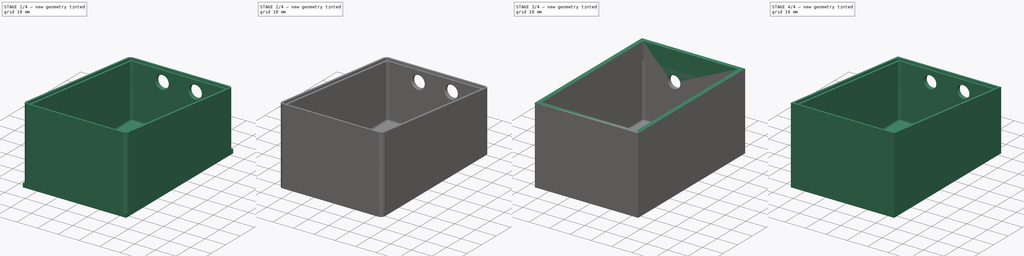
[diagram: build sequence overview — one tinted view per stage of 4, left to right]
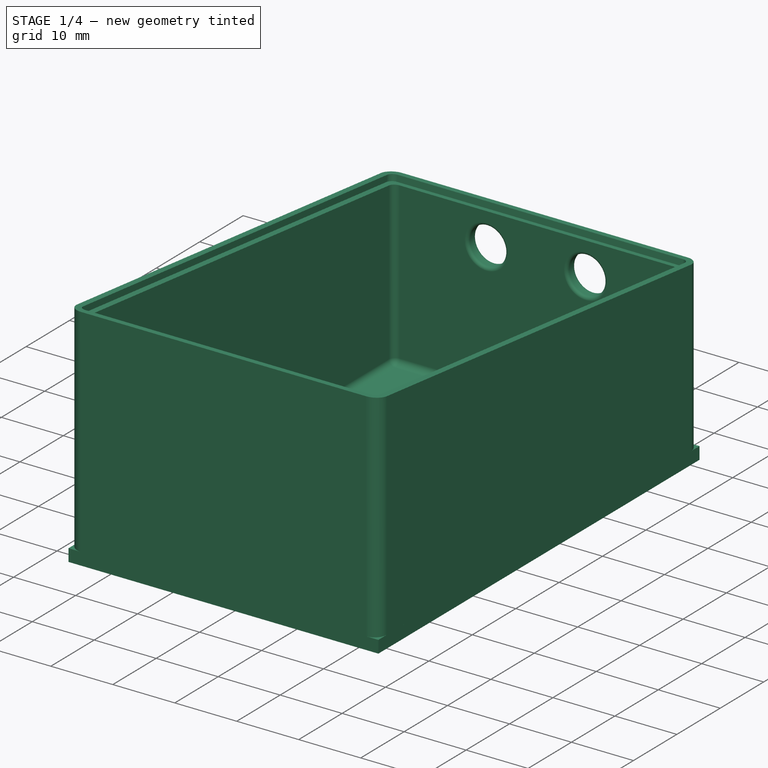
[diagram: stage 1 of 4 — iso view after this stage's code; geometry added in this stage tinted green]
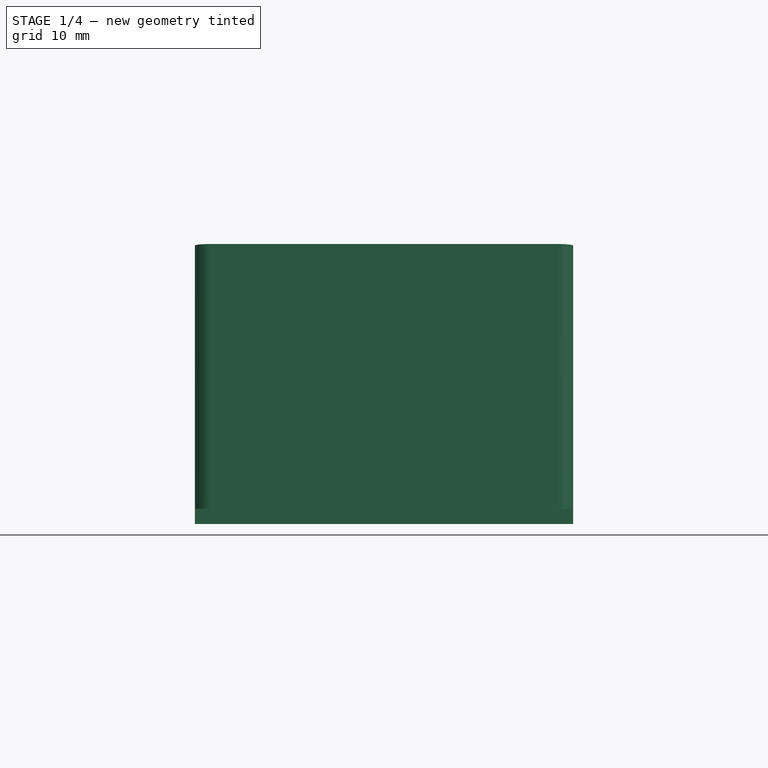
[diagram: stage 1 of 4 — front view after this stage's code; geometry added in this stage tinted green]
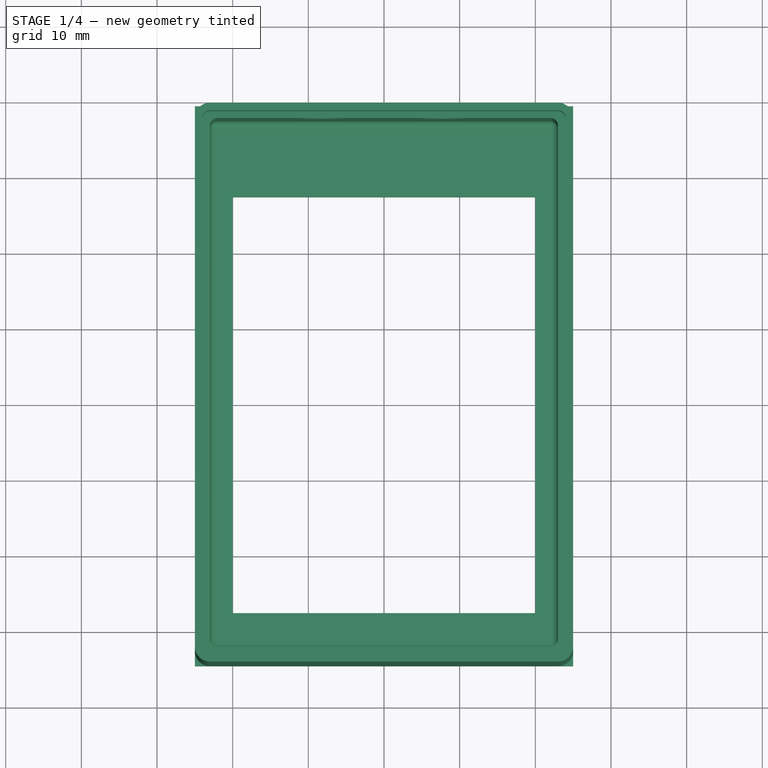
[diagram: stage 1 of 4 — top view after this stage's code; geometry added in this stage tinted green]
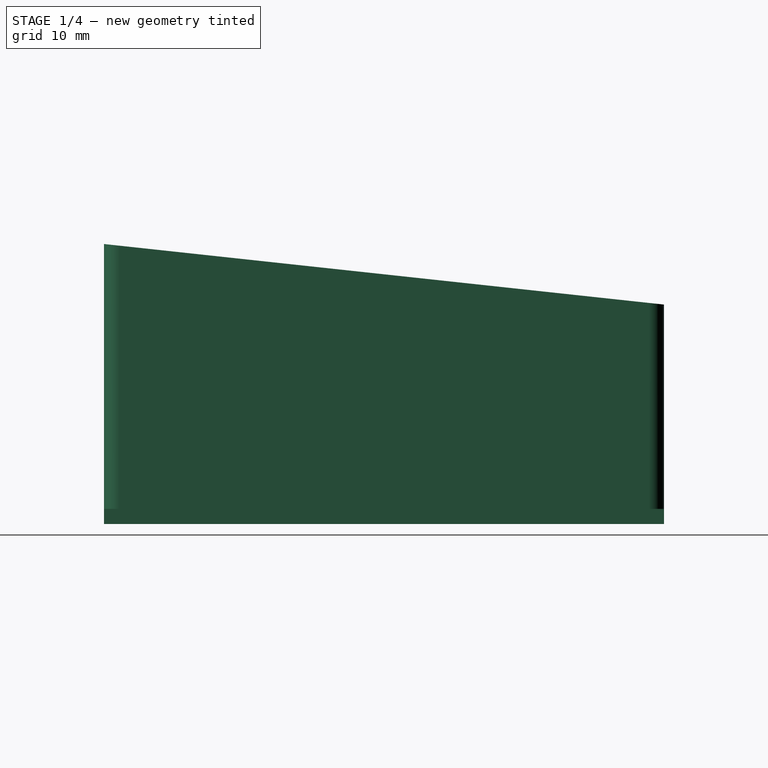
[diagram: stage 1 of 4 — right view after this stage's code; geometry added in this stage tinted green]
FCSTD DOCUMENT  (FreeCAD 0.15R4671 (Git))
Label: Boitier
License: All rights reserved
LicenseURL: http://en.wikipedia.org/wiki/All_rights_reserved
objects: Sketcher::SketchObject×6, PartDesign::Fillet×5, PartDesign::Pocket×4, PartDesign::Pad×2, PartDesign::Mirrored×1
note: 24 computed .brp shape members not serialized (recipe doc carries the construction recipe); baked Part::Feature solids carry a one-line shape summary decoded from their .brp

FEATURE [Sketcher::SketchObject] Sketch
  sketch-geometry (8):
    g0: LineSegment StartX=-20 StartY=27.5 StartZ=0 EndX=20 EndY=27.5 EndZ=0
    g1: LineSegment StartX=20 StartY=27.5 StartZ=0 EndX=20 EndY=-27.5 EndZ=0
    g2: LineSegment StartX=20 StartY=-27.5 StartZ=0 EndX=-20 EndY=-27.5 EndZ=0
    g3: LineSegment StartX=-20 StartY=-27.5 StartZ=0 EndX=-20 EndY=27.5 EndZ=0
    g4: LineSegment StartX=-25 StartY=39.5 StartZ=0 EndX=25 EndY=39.5 EndZ=0
    g5: LineSegment StartX=25 StartY=39.5 StartZ=0 EndX=25 EndY=-34.5 EndZ=0
    g6: LineSegment StartX=25 StartY=-34.5 StartZ=0 EndX=-25 EndY=-34.5 EndZ=0
    g7: LineSegment StartX=-25 StartY=-34.5 StartZ=0 EndX=-25 EndY=39.5 EndZ=0
  constraints (23):
    c: Coincident(g0,g1)
    c: Coincident(g1,g2)
    c: Coincident(g2,g3)
    c: Coincident(g3,g0)
    c: Horizontal(g0)
    c: Horizontal(g2)
    c: Vertical(g1)
    c: Vertical(g3)
    c: DistanceX(g0,g0) = 40
    c: DistanceY(g3) = 55
    c: Symmetric(g0,g1,g-1)
    c: Coincident(g4,g5)
    c: Coincident(g5,g6)
    c: Coincident(g6,g7)
    c: Coincident(g7,g4)
    c: Horizontal(g4)
    c: Horizontal(g6)
    c: Vertical(g5)
    c: Vertical(g7)
    c: DistanceY(g2,g6) = -7
    c: DistanceX(g4,g0) = 5
    c: DistanceX(g0,g4) = 5
    c: DistanceY(g4,g0) = -12
FEATURE [PartDesign::Pad] Pad  label="Ecran"
  Length = 2
  Length2 = 100
  Reversed = true
  Sketch = -> Sketch
  Type = 0
FEATURE [PartDesign::Fillet] Fillet005  label="Congé couvercle"
  Radius = 1
FEATURE [PartDesign::Fillet] Fillet
  Base = -> Fillet005 [Edge75,Edge49,Edge77,Edge50]
  Radius = 0.5
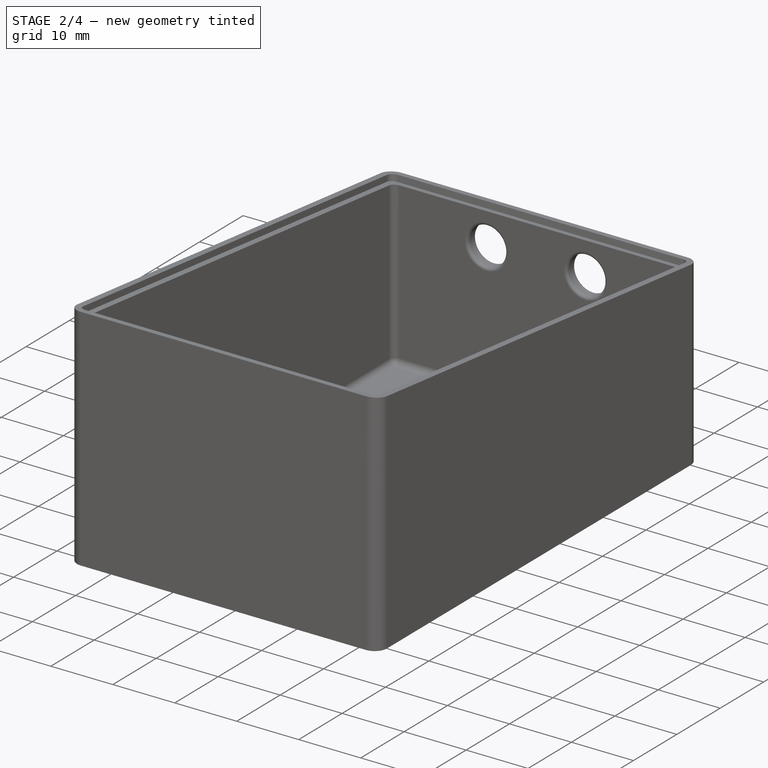
[diagram: stage 2 of 4 — iso view after this stage's code; geometry added in this stage tinted green]
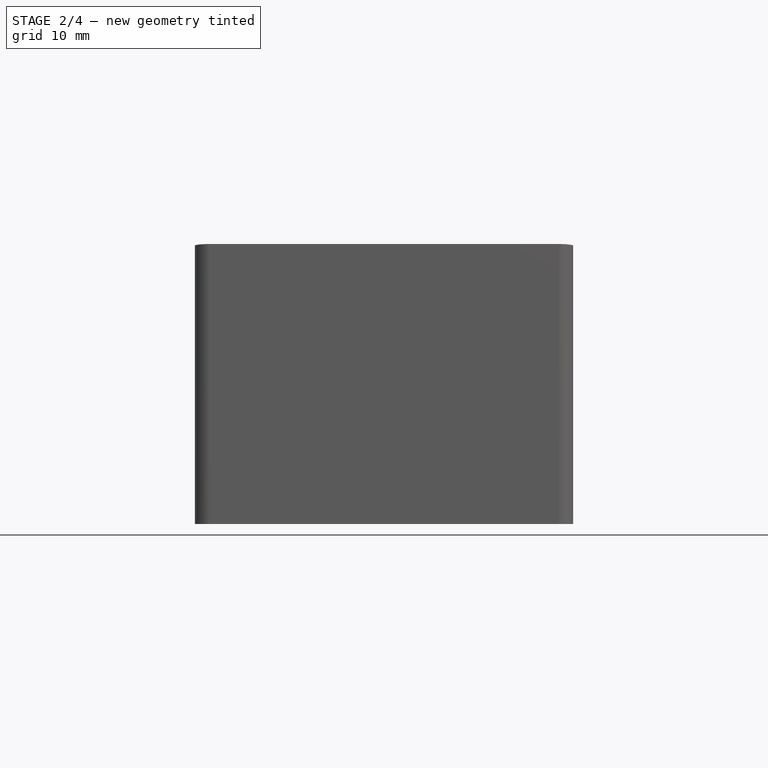
[diagram: stage 2 of 4 — front view after this stage's code; geometry added in this stage tinted green]
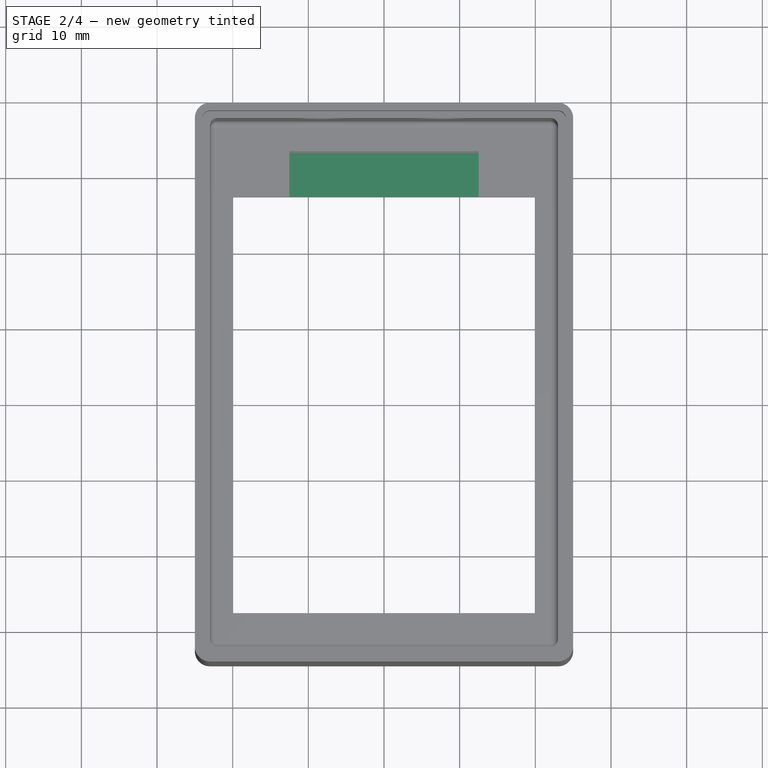
[diagram: stage 2 of 4 — top view after this stage's code; geometry added in this stage tinted green]
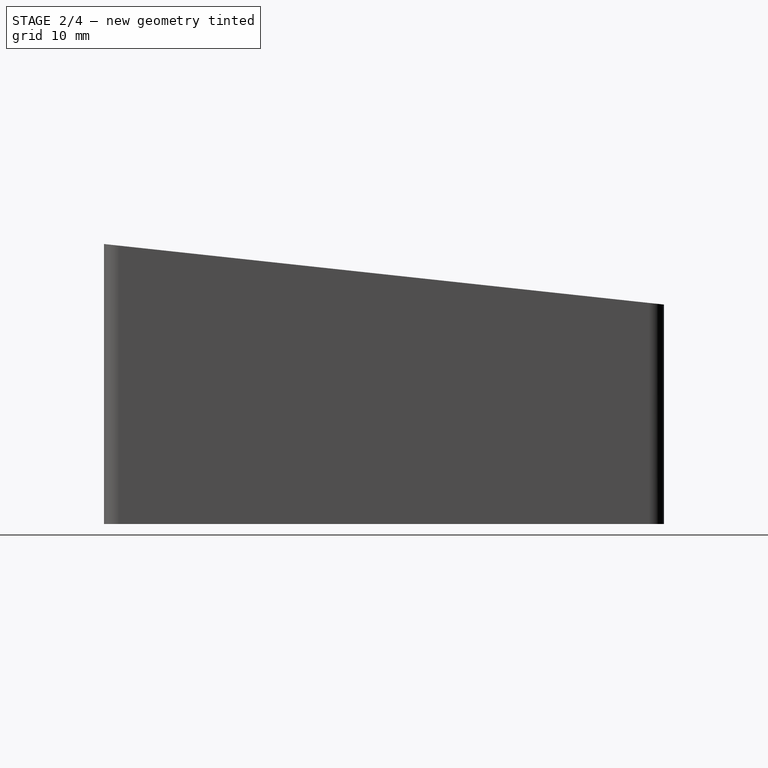
[diagram: stage 2 of 4 — right view after this stage's code; geometry added in this stage tinted green]
FEATURE [Sketcher::SketchObject] Sketch001
  ExternalGeometry = -> [Pad]
  Support = -> Pad [Face9]
  sketch-geometry (4):
    g0: LineSegment StartX=-12.5 StartY=27.5 StartZ=0 EndX=-12.5 EndY=33.5 EndZ=0
    g1: LineSegment StartX=-12.5 StartY=33.5 StartZ=0 EndX=12.5 EndY=33.5 EndZ=0
    g2: LineSegment StartX=12.5 StartY=33.5 StartZ=0 EndX=12.5 EndY=27.5 EndZ=0
    g3: LineSegment StartX=-12.5 StartY=27.5 StartZ=0 EndX=12.5 EndY=27.5 EndZ=0
  constraints (12):
    c: Vertical(g0)
    c: Coincident(g0,g1)
    c: Horizontal(g1)
    c: Coincident(g1,g2)
    c: Vertical(g2)
    c: Coincident(g3,g0)
    c: Coincident(g3,g2)
    c: Horizontal(g3)
    c: Symmetric(g1,g0,g-2)
    c: DistanceY(g2,g-3) = 0
    c: DistanceX(g0,g2) = 25
    c: DistanceY(g1,g2) = -6
FEATURE [PartDesign::Pocket] Pocket  label="Nappe"
  Length = 1.4
  Sketch = -> Sketch001
  Type = 0
FEATURE [PartDesign::Fillet] Fillet003  label="Congé nappe"
  Base = -> Pocket [Edge35]
  Radius = 1
FEATURE [PartDesign::Fillet] Fillet004  label="Congé extérieur 2"
  Base = -> Fillet003 [Edge30,Edge32,Edge27,Edge28]
  Radius = 2
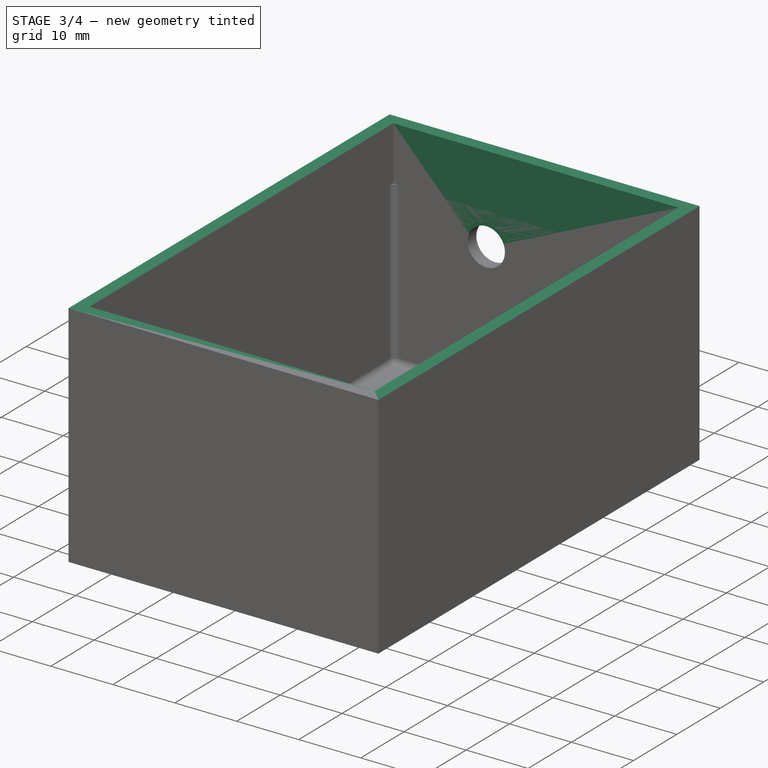
[diagram: stage 3 of 4 — iso view after this stage's code; geometry added in this stage tinted green]
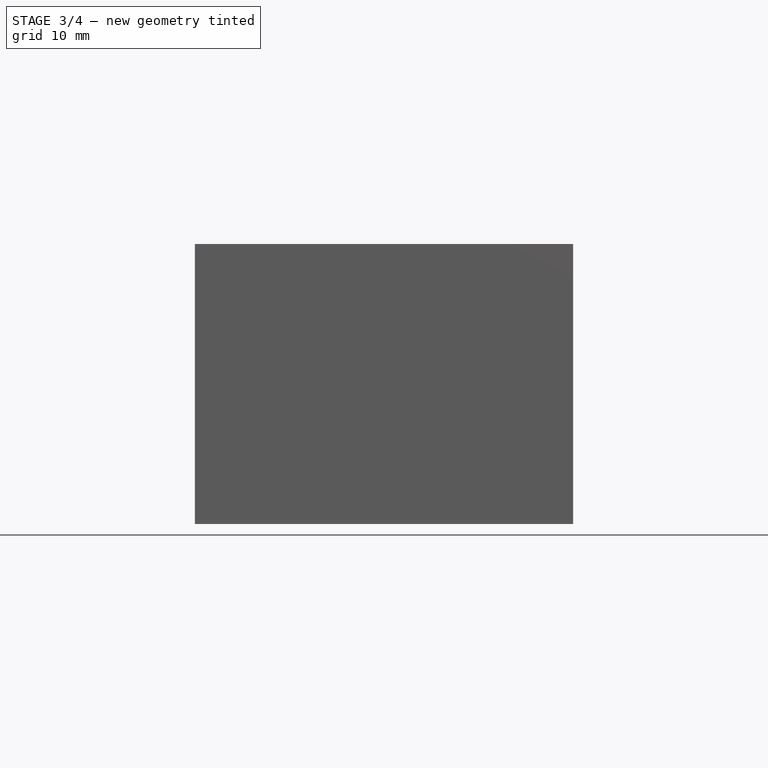
[diagram: stage 3 of 4 — front view after this stage's code; geometry added in this stage tinted green]
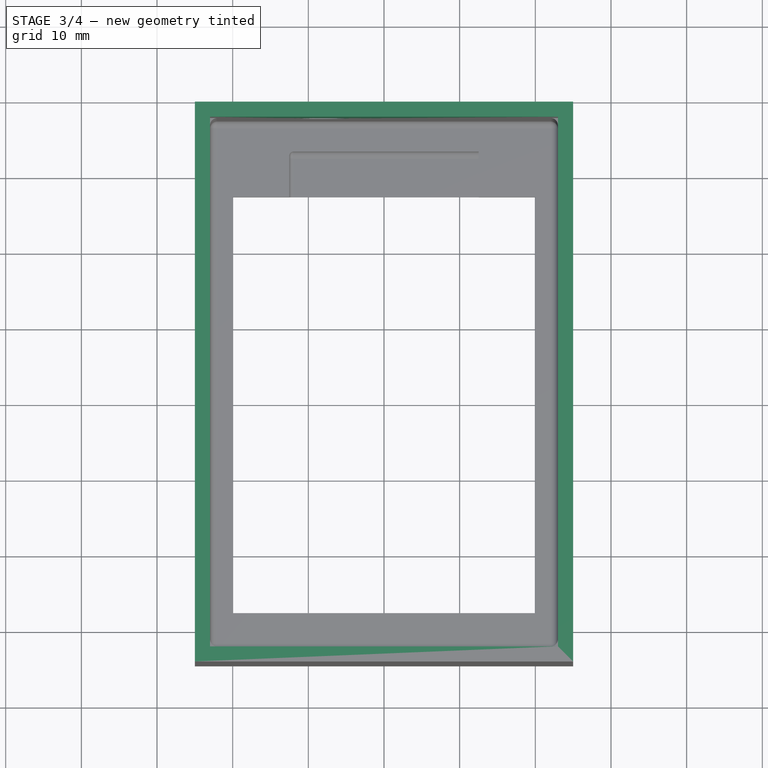
[diagram: stage 3 of 4 — top view after this stage's code; geometry added in this stage tinted green]
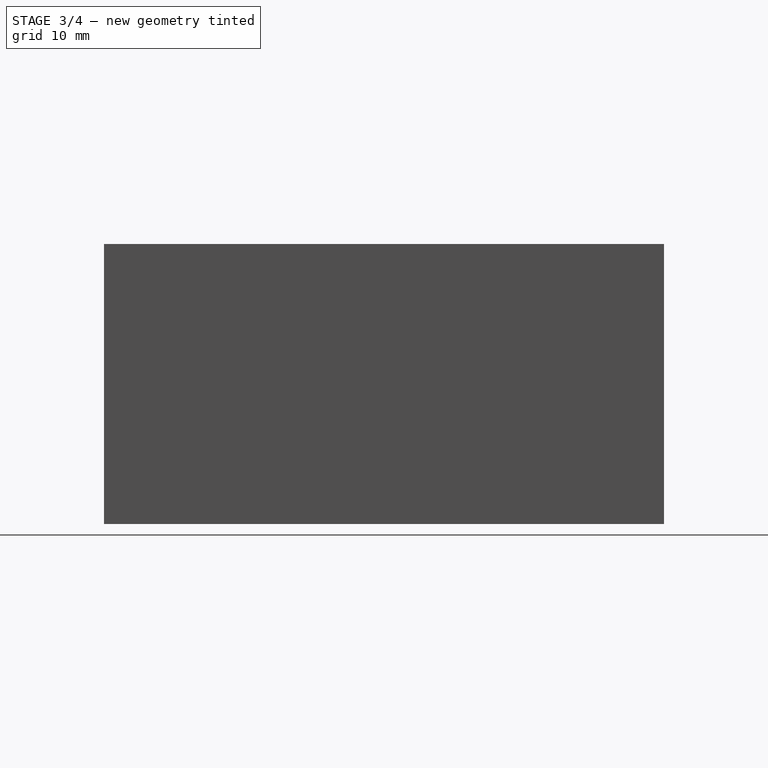
[diagram: stage 3 of 4 — right view after this stage's code; geometry added in this stage tinted green]
FEATURE [Sketcher::SketchObject] Sketch002
  ExternalGeometry = -> [Pocket]
  Support = -> Pocket [Face4]
  sketch-geometry (8):
    g0: LineSegment StartX=-23 StartY=37.5 StartZ=0 EndX=23 EndY=37.5 EndZ=0
    g1: LineSegment StartX=23 StartY=37.5 StartZ=0 EndX=23 EndY=-32.5 EndZ=0
    g2: LineSegment StartX=23 StartY=-32.5 StartZ=0 EndX=-23 EndY=-32.5 EndZ=0
    g3: LineSegment StartX=-23 StartY=-32.5 StartZ=0 EndX=-23 EndY=37.5 EndZ=0
    g4: LineSegment StartX=-25 StartY=39.5 StartZ=0 EndX=25 EndY=39.5 EndZ=0
    g5: LineSegment StartX=-25 StartY=39.5 StartZ=0 EndX=-25 EndY=-34.5 EndZ=0
    g6: LineSegment StartX=-25 StartY=-34.5 StartZ=0 EndX=25 EndY=-34.5 EndZ=0
    g7: LineSegment StartX=25 StartY=-34.5 StartZ=0 EndX=25 EndY=39.5 EndZ=0
  constraints (20):
    c: Coincident(g0,g1)
    c: Coincident(g1,g2)
    c: Coincident(g2,g3)
    c: Coincident(g3,g0)
    c: Horizontal(g0)
    c: Horizontal(g2)
    c: Vertical(g1)
    c: Vertical(g3)
    c: DistanceY(g0,g-6) = 2
    c: DistanceX(g0,g-6) = 2
    c: DistanceX(g2,g-5) = -2
    c: DistanceY(g2,g-5) = -2
    c: Coincident(g4,g-6)
    c: Coincident(g4,g-6)
    c: Coincident(g5,g4)
    c: Coincident(g5,g-5)
    c: Coincident(g6,g5)
    c: Coincident(g6,g-4)
    c: Coincident(g7,g6)
    c: Coincident(g7,g4)
FEATURE [PartDesign::Pad] Pad001  label="Flancs"
  Length = 35
  Length2 = 100
  Sketch = -> Sketch002
  Type = 0
FEATURE [Sketcher::SketchObject] Sketch003
  ExternalGeometry = -> [Pad001]
  Placement = pos=(0,39.5,0) rot=(0,0.707107,0.707107;3.14159rad)
  Support = -> Pad001 [Face10]
  sketch-geometry (2):
    g0: Circle CenterX=8 CenterY=21 CenterZ=0 NormalX=0 NormalY=0 NormalZ=1 Radius=3
    g1: GeomPoint [constr] X=0 Y=35 Z=0
  constraints (5):
    c: Radius(g0) = 3
    c: PointOnObject(g1,g-5)
    c: PointOnObject(g1,g-2)
    c: DistanceY(g0,g-5) = 14
    c: DistanceX(g0,g1) = -8
FEATURE [PartDesign::Pocket] Pocket001
  Length = 0
  Sketch = -> Sketch003
  Type = 3
  UpToFace = -> Pad001 [Face20]
FEATURE [PartDesign::Fillet] Fillet006  label="Congé nappe 2"
  Base = -> Fillet004 [Edge49,Edge50,Edge47]
  Radius = 0.5
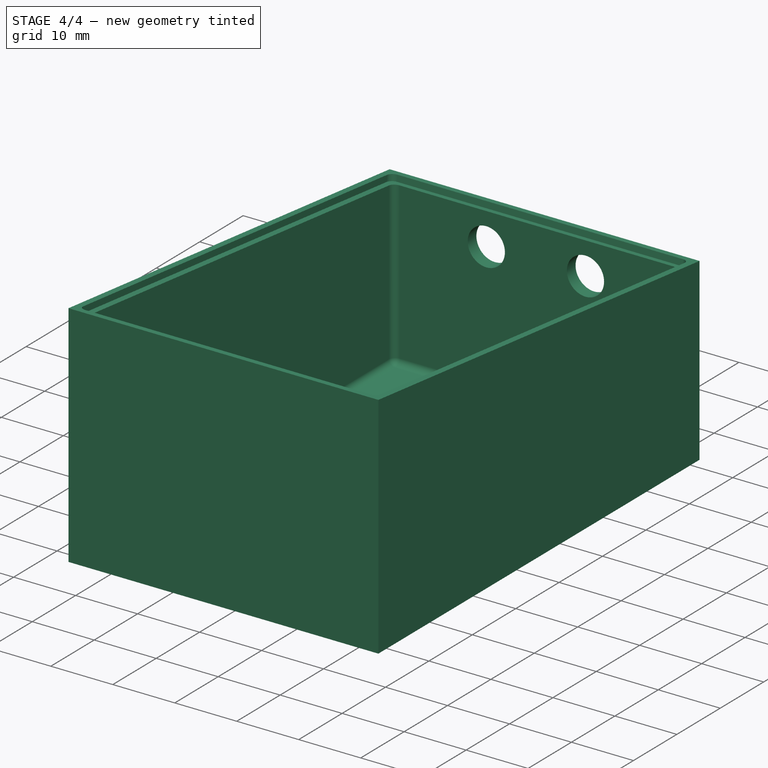
[diagram: stage 4 of 4 — iso view after this stage's code; geometry added in this stage tinted green]
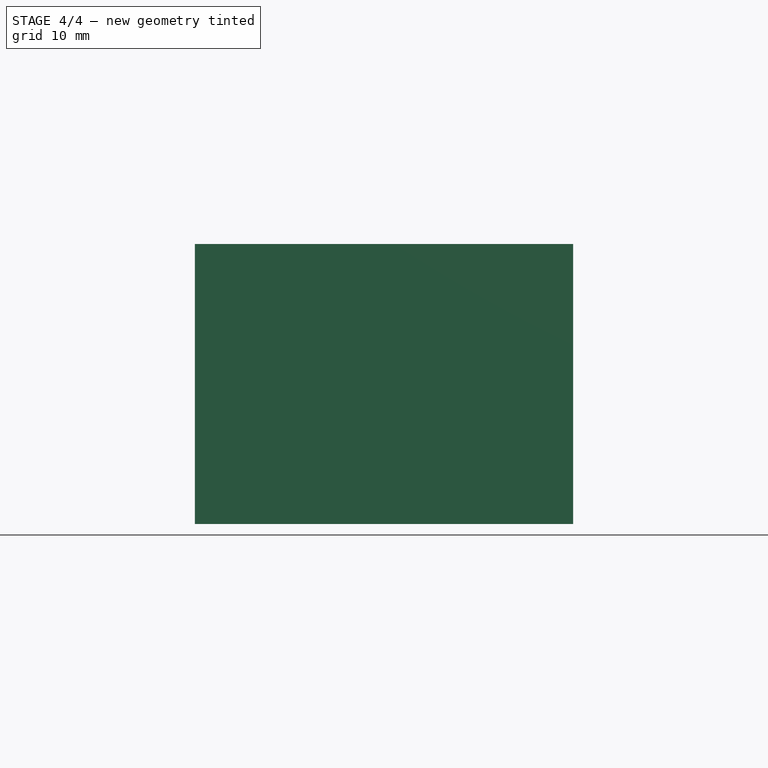
[diagram: stage 4 of 4 — front view after this stage's code; geometry added in this stage tinted green]
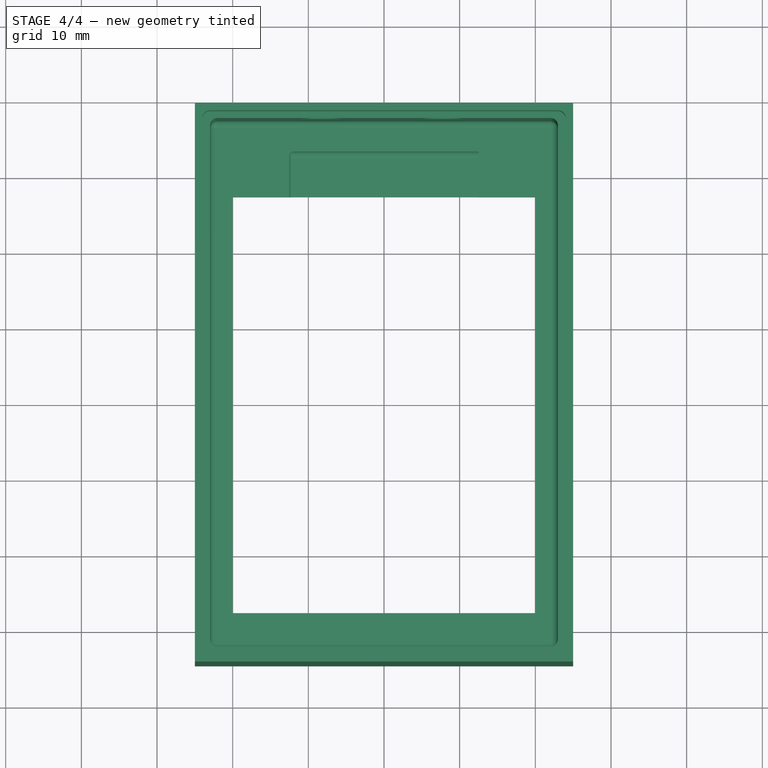
[diagram: stage 4 of 4 — top view after this stage's code; geometry added in this stage tinted green]
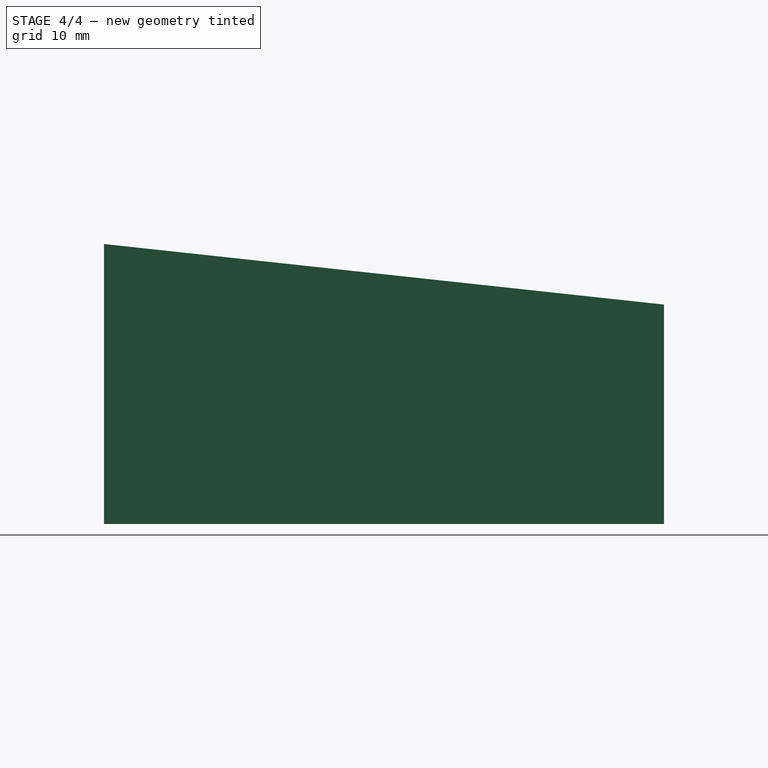
[diagram: stage 4 of 4 — right view after this stage's code; geometry added in this stage tinted green]
FEATURE [PartDesign::Mirrored] Mirrored
  MirrorPlane = -> Sketch003 [V_Axis]
  Originals = -> [Pocket001]
FEATURE [Sketcher::SketchObject] Sketch004
  ExternalGeometry = -> [Mirrored]
  Placement = pos=(-25,0,0) rot=(0.57735,-0.57735,-0.57735;2.0944rad)
  Support = -> Mirrored [Face13]
  sketch-geometry (3):
    g0: LineSegment StartX=-39.5 StartY=35 StartZ=0 EndX=34.5 EndY=35 EndZ=0
    g1: LineSegment StartX=-39.5 StartY=27 StartZ=0 EndX=34.5 EndY=35 EndZ=0
    g2: LineSegment StartX=-39.5 StartY=27 StartZ=0 EndX=-39.5 EndY=35 EndZ=0
  constraints (8):
    c: Coincident(g0,g-4)
    c: PointOnObject(g1,g-4)
    c: Coincident(g0,g-5)
    c: Coincident(g1,g0)
    c: Coincident(g2,g1)
    c: Coincident(g2,g0)
    c: PointOnObject(g1,g-5)
    c: DistanceY(g2) = 8
FEATURE [PartDesign::Pocket] Pocket002  label="Coupe"
  Length = 5
  Sketch = -> Sketch004
  Type = 1
FEATURE [Sketcher::SketchObject] Sketch005
  ExternalGeometry = -> [Pocket002]
  Placement = pos=(0,3.34152,30.909) rot=(-1,0,0;0.10769rad)
  Support = -> Pocket002 [Face18]
  sketch-geometry (4):
    g0: LineSegment StartX=-24 StartY=35.3575 StartZ=0 EndX=24 EndY=35.3575 EndZ=0
    g1: LineSegment StartX=24 StartY=35.3575 StartZ=0 EndX=24 EndY=-37.0504 EndZ=0
    g2: LineSegment StartX=24 StartY=-37.0504 StartZ=0 EndX=-24 EndY=-37.0504 EndZ=0
    g3: LineSegment StartX=-24 StartY=-37.0504 StartZ=0 EndX=-24 EndY=35.3575 EndZ=0
  constraints (12):
    c: Coincident(g0,g1)
    c: Coincident(g1,g2)
    c: Coincident(g2,g3)
    c: Coincident(g3,g0)
    c: Horizontal(g0)
    c: Horizontal(g2)
    c: Vertical(g1)
    c: Vertical(g3)
    c: DistanceY(g1,g-6) = 1
    c: DistanceX(g-6,g1) = 1
    c: DistanceX(g-4,g0) = -1
    c: DistanceY(g-4,g0) = 1
FEATURE [PartDesign::Pocket] Pocket003  label="Couvercle"
  Length = 1
  Sketch = -> Sketch005
  Type = 0
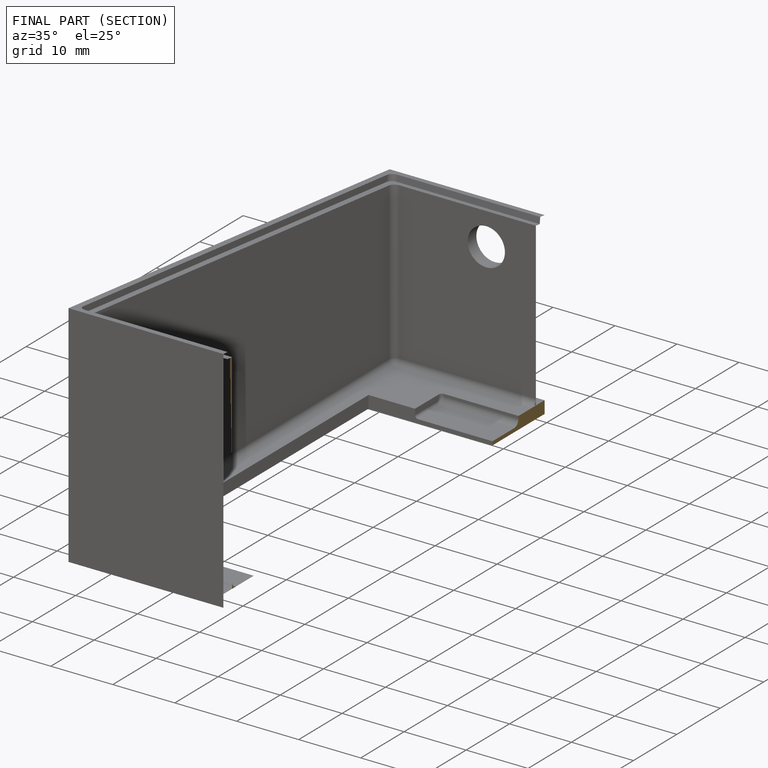
[diagram: finished part — half-section view (interior)]
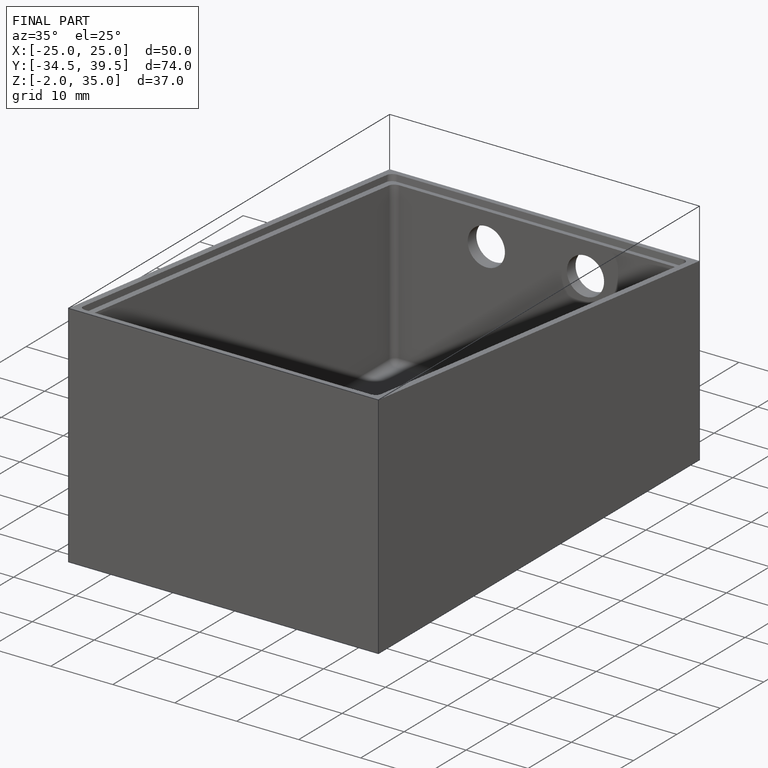
[diagram: finished part — iso view with bounding-box wireframe]
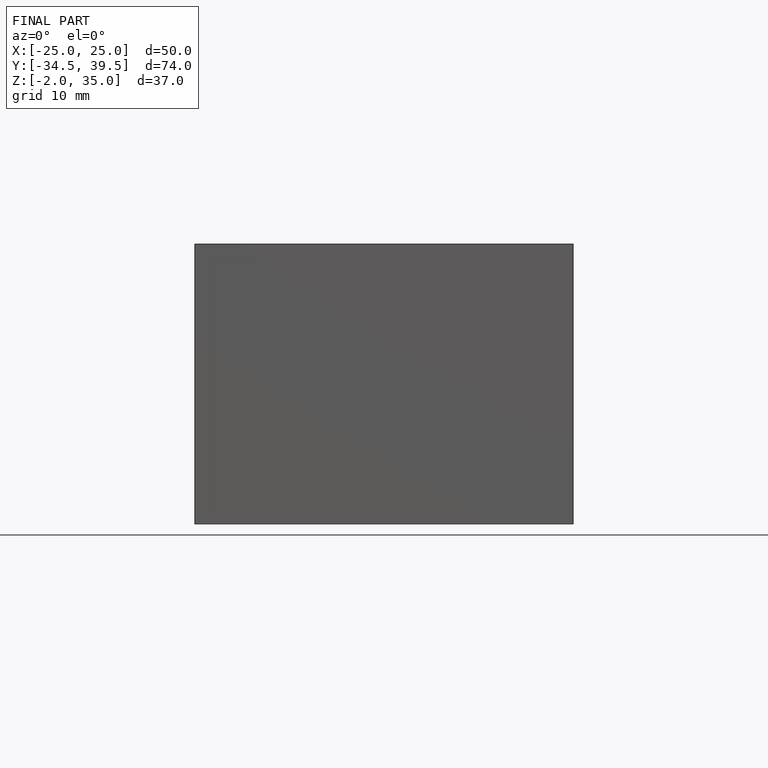
[diagram: finished part — front view with bounding-box wireframe]
